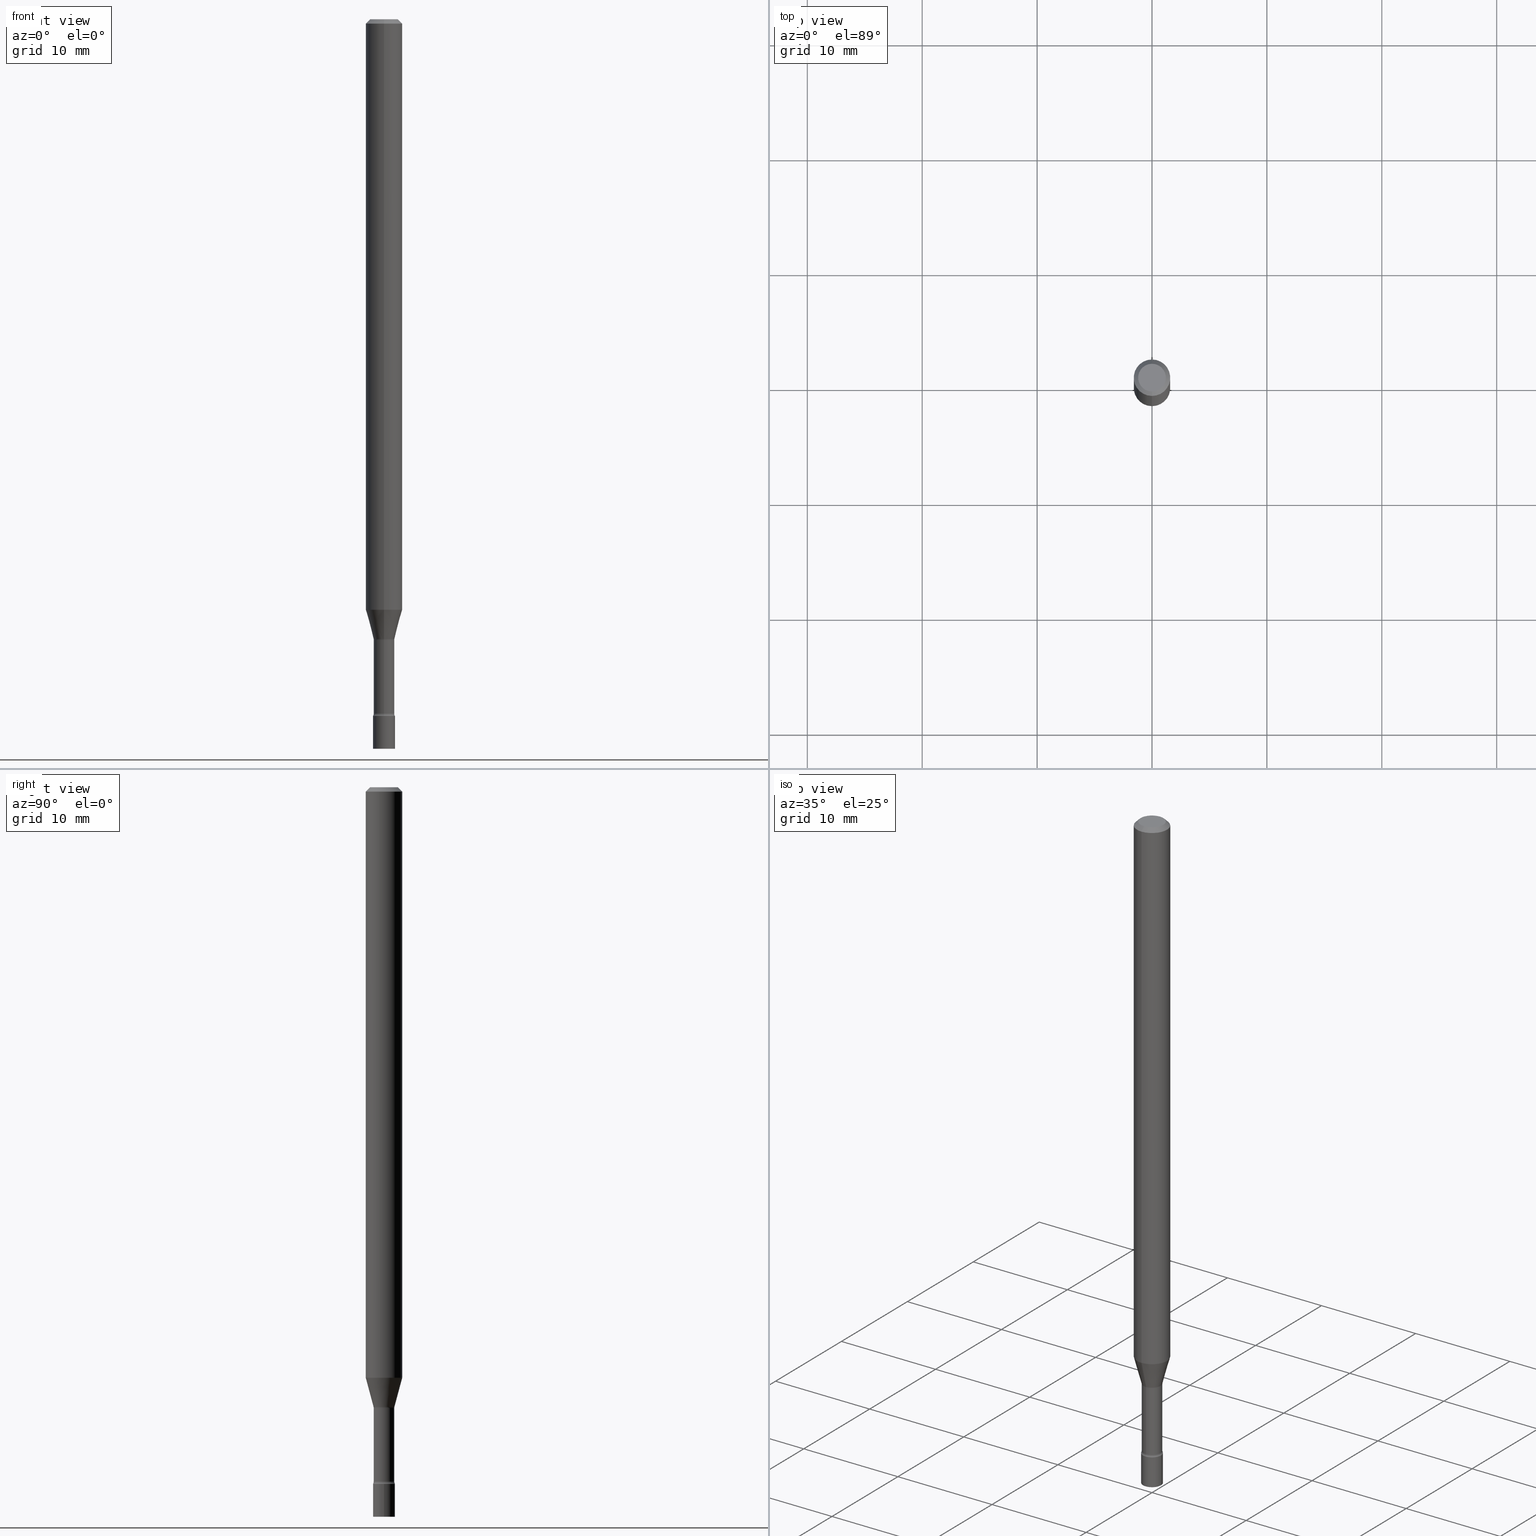
[diagram: canonical four-view strip — front | top / right | iso, engineering-drawing reading convention]
A machine part, canonical four-view strip (front | top / right | iso — engineering-drawing reading convention). The complete STEP part file that produces these views, byte-faithful:
ISO-10303-21;
HEADER;
FILE_DESCRIPTION (( 'STEP AP203' ),
    '1' );
FILE_NAME ('03551.STEP',
    '2024-03-08T21:46:48',
    ( '' ),
    ( '' ),
    'SwSTEP 2.0',
    'SolidWorks 2023',
    '' );
FILE_SCHEMA (( 'CONFIG_CONTROL_DESIGN' ));
ENDSEC;

DATA;
#1 = DIRECTION ( 'NONE',  ( -2.445468806185136597E-29, 3.491481338843145583E-15, 1.000000000000000000 ) ) ;
#2 = EDGE_CURVE ( 'NONE', #39, #55, #101, .T. ) ;
#3 = VERTEX_POINT ( 'NONE', #381 ) ;
#4 = EDGE_LOOP ( 'NONE', ( #458, #24, #254, #62 ) ) ;
#5 = APPROVAL_ROLE ( '' ) ;
#6 = CIRCLE ( 'NONE', #221, 0.03749999999999999861 ) ;
#7 = APPROVAL ( #178, 'UNSPECIFIED' ) ;
#8 = TOROIDAL_SURFACE ( 'NONE', #433, 0.05025000000000002381, 0.01499999999999996649 ) ;
#9 =( LENGTH_UNIT ( ) NAMED_UNIT ( * ) SI_UNIT ( $, .METRE. ) );
#10 = PERSON_AND_ORGANIZATION ( #455, #352 ) ;
#11 = DIRECTION ( 'NONE',  ( 6.982962677686265922E-15, 1.000000000000000000, -3.483106191921935554E-15 ) ) ;
#12 = ORIENTED_EDGE ( 'NONE', *, *, #213, .F. ) ;
#13 = CONICAL_SURFACE ( 'NONE', #33, 0.03576111260566397498, 0.2617993877991499629 ) ;
#14 = TOROIDAL_SURFACE ( 'NONE', #300, 0.05024999999999999606, 0.01500000000000003067 ) ;
#15 = ORIENTED_EDGE ( 'NONE', *, *, #362, .F. ) ;
#16 = CC_DESIGN_PERSON_AND_ORGANIZATION_ASSIGNMENT ( #226, #29, ( #257 ) ) ;
#17 = DIRECTION ( 'NONE',  ( -2.445452959070031637E-29, 3.491504032813937945E-15, 1.000000000000000000 ) ) ;
#18 = CALENDAR_DATE ( 2024, 8, 3 ) ;
#19 = CYLINDRICAL_SURFACE ( 'NONE', #477, 0.03749999999999999861 ) ;
#20 = CARTESIAN_POINT ( 'NONE',  ( -2.461494343883830938E-16, -0.03525000000000835798, -2.379098259685360706 ) ) ;
#21 = ORIENTED_EDGE ( 'NONE', *, *, #275, .F. ) ;
#22 = DIRECTION ( 'NONE',  ( -6.982962677686265922E-15, -1.000000000000000000, 3.483106191921935554E-15 ) ) ;
#23 = DIRECTION ( 'NONE',  ( -2.445468806185136877E-29, 3.491481338843145188E-15, 1.000000000000000000 ) ) ;
#24 = ORIENTED_EDGE ( 'NONE', *, *, #460, .T. ) ;
#25 = ORIENTED_EDGE ( 'NONE', *, *, #397, .F. ) ;
#26 = DIRECTION ( 'NONE',  ( -6.982962677686265922E-15, -1.000000000000000000, 3.483106191921935554E-15 ) ) ;
#27 = VERTEX_POINT ( 'NONE', #499 ) ;
#28 = EDGE_CURVE ( 'NONE', #55, #492, #234, .T. ) ;
#29 = PERSON_AND_ORGANIZATION_ROLE ( 'classification_officer' ) ;
#30 = EDGE_LOOP ( 'NONE', ( #185, #384, #98, #338 ) ) ;
#31 = VERTEX_POINT ( 'NONE', #290 ) ;
#32 = FACE_OUTER_BOUND ( 'NONE', #77, .T. ) ;
#33 = AXIS2_PLACEMENT_3D ( 'NONE', #56, #170, #442 ) ;
#34 = ORIENTED_EDGE ( 'NONE', *, *, #91, .T. ) ;
#35 = CONICAL_SURFACE ( 'NONE', #308, 0.03576111260566397498, 0.2617993877991499629 ) ;
#36 = DIRECTION ( 'NONE',  ( -6.982962677686265922E-15, -1.000000000000000000, 4.370956789862821150E-15 ) ) ;
#37 = DIRECTION ( 'NONE',  ( -2.445452959070031637E-29, 3.491504032813937945E-15, 1.000000000000000000 ) ) ;
#38 = DIRECTION ( 'NONE',  ( -6.982962677686265922E-15, -1.000000000000000000, 3.491504032813938339E-15 ) ) ;
#39 = VERTEX_POINT ( 'NONE', #153 ) ;
#40 = DIRECTION ( 'NONE',  ( -6.982962677686265922E-15, -1.000000000000000000, 3.491504032813937945E-15 ) ) ;
#41 = CARTESIAN_POINT ( 'NONE',  ( 5.818010580909894890E-29, -8.306577176965639319E-15, -2.379098259685360706 ) ) ;
#42 = EDGE_LOOP ( 'NONE', ( #93, #191 ) ) ;
#43 = PLANE ( 'NONE',  #369 ) ;
#44 = AXIS2_PLACEMENT_3D ( 'NONE', #376, #182, #26 ) ;
#45 = CC_DESIGN_APPROVAL ( #283, ( #257 ) ) ;
#46 = DESIGN_CONTEXT ( 'detailed design', #365, 'design' ) ;
#47 = CARTESIAN_POINT ( 'NONE',  ( 4.440892098500625669E-16, 0.06250000000000000000, -2.182190020508711216E-16 ) ) ;
#48 = DIRECTION ( 'NONE',  ( -6.982962677686265922E-15, -1.000000000000000000, 3.491504032813937551E-15 ) ) ;
#49 = COORDINATED_UNIVERSAL_TIME_OFFSET ( 5, 0, .BEHIND. ) ;
#50 = DIRECTION ( 'NONE',  ( 1.000000000000000000, 0.000000000000000000, 0.000000000000000000 ) ) ;
#51 = DIRECTION ( 'NONE',  ( 1.839019923739597949E-15, 0.2588190451025246253, 0.9659258262890670910 ) ) ;
#52 = AXIS2_PLACEMENT_3D ( 'NONE', #151, #336, #230 ) ;
#53 = PERSON_AND_ORGANIZATION ( #455, #352 ) ;
#54 = EDGE_CURVE ( 'NONE', #39, #189, #145, .T. ) ;
#55 = VERTEX_POINT ( 'NONE', #395 ) ;
#56 = CARTESIAN_POINT ( 'NONE',  ( 5.191922840875083909E-29, -7.412786032027297017E-15, -2.123092501787273267 ) ) ;
#57 = AXIS2_PLACEMENT_3D ( 'NONE', #501, #113, #377 ) ;
#58 = ADVANCED_FACE ( 'NONE', ( #322 ), #378, .T. ) ;
#59 = DATE_AND_TIME ( #291, #487 ) ;
#60 = DIRECTION ( 'NONE',  ( -2.445452959070031637E-29, 3.491504032813937945E-15, 1.000000000000000000 ) ) ;
#61 = DIRECTION ( 'NONE',  ( -2.445468806185136877E-29, 3.491481338843145188E-15, 1.000000000000000000 ) ) ;
#62 = ORIENTED_EDGE ( 'NONE', *, *, #199, .F. ) ;
#63 = DIRECTION ( 'NONE',  ( 7.105427357601001859E-15, 1.000000000000000000, 0.000000000000000000 ) ) ;
#64 = DIRECTION ( 'NONE',  ( -2.445452959070031637E-29, 3.491504032813937945E-15, 1.000000000000000000 ) ) ;
#65 = VERTEX_POINT ( 'NONE', #171 ) ;
#66 = FACE_OUTER_BOUND ( 'NONE', #452, .T. ) ;
#67 = TOROIDAL_SURFACE ( 'NONE', #167, 0.05025000000000002381, 0.01499999999999996649 ) ;
#68 = DIRECTION ( 'NONE',  ( -1.000000000000000000, 6.982962677686265922E-15, -4.883557194083112901E-29 ) ) ;
#69 = ADVANCED_FACE ( 'NONE', ( #122 ), #449, .T. ) ;
#70 = CARTESIAN_POINT ( 'NONE',  ( 3.570477247195085925E-16, 0.05024999999999171796, -2.379098259685360706 ) ) ;
#71 = ORIENTED_EDGE ( 'NONE', *, *, #383, .T. ) ;
#72 = DIRECTION ( 'NONE',  ( -2.445452959070031637E-29, 3.491504032813937945E-15, 1.000000000000000000 ) ) ;
#73 = CARTESIAN_POINT ( 'NONE',  ( 5.201450494285011202E-29, -7.426292778619762925E-15, -2.126974787463811190 ) ) ;
#74 = ADVANCED_FACE ( 'NONE', ( #220 ), #133, .T. ) ;
#75 = CIRCLE ( 'NONE', #44, 0.06250000000000000000 ) ;
#76 = CARTESIAN_POINT ( 'NONE',  ( 5.837296213300165322E-29, -8.334220126326869509E-15, -2.387000000000000011 ) ) ;
#77 = EDGE_LOOP ( 'NONE', ( #15, #162, #424, #505 ) ) ;
#78 = CARTESIAN_POINT ( 'NONE',  ( -4.364351673553916201E-16, -0.06250000000000000000, 2.182190020508711216E-16 ) ) ;
#79 = CC_DESIGN_PERSON_AND_ORGANIZATION_ASSIGNMENT ( #491, #408, ( #498 ) ) ;
#80 = LINE ( 'NONE', #78, #307 ) ;
#81 = FACE_OUTER_BOUND ( 'NONE', #261, .T. ) ;
#82 = CIRCLE ( 'NONE', #198, 0.06250000000000000000 ) ;
#83 = ORIENTED_EDGE ( 'NONE', *, *, #323, .T. ) ;
#84 = DIRECTION ( 'NONE',  ( -6.982962677686265922E-15, -1.000000000000000000, 0.000000000000000000 ) ) ;
#85 = AXIS2_PLACEMENT_3D ( 'NONE', #509, #60, #303 ) ;
#86 = ADVANCED_FACE ( 'NONE', ( #372 ), #250, .T. ) ;
#87 = APPLICATION_PROTOCOL_DEFINITION ( 'international standard', 'config_control_design', 1994, #279 ) ;
#88 = PRODUCT_DEFINITION_SHAPE ( 'NONE', 'NONE',  #498 ) ;
#89 = APPROVAL_ROLE ( '' ) ;
#90 = AXIS2_PLACEMENT_3D ( 'NONE', #515, #355, #478 ) ;
#91 = EDGE_CURVE ( 'NONE', #3, #65, #329, .T. ) ;
#92 = AXIS2_PLACEMENT_3D ( 'NONE', #217, #190, #110 ) ;
#93 = ORIENTED_EDGE ( 'NONE', *, *, #494, .T. ) ;
#94 = FACE_OUTER_BOUND ( 'NONE', #335, .T. ) ;
#95 = SECURITY_CLASSIFICATION_LEVEL ( 'unclassified' ) ;
#96 = ORIENTED_EDGE ( 'NONE', *, *, #285, .T. ) ;
#97 = PERSON_AND_ORGANIZATION_ROLE ( 'design_owner' ) ;
#98 = ORIENTED_EDGE ( 'NONE', *, *, #28, .T. ) ;
#99 = DATE_AND_TIME ( #284, #277 ) ;
#100 =( GEOMETRIC_REPRESENTATION_CONTEXT ( 3 ) GLOBAL_UNCERTAINTY_ASSIGNED_CONTEXT ( ( #349 ) ) GLOBAL_UNIT_ASSIGNED_CONTEXT ( ( #321, #320, #214 ) ) REPRESENTATION_CONTEXT ( 'NONE', 'WORKASPACE' ) );
#101 = CIRCLE ( 'NONE', #390, 0.01500000000000002720 ) ;
#102 = ORIENTED_EDGE ( 'NONE', *, *, #241, .T. ) ;
#103 = CARTESIAN_POINT ( 'NONE',  ( -3.508938745536828236E-16, -0.05025000000000742068, -2.126974787463810745 ) ) ;
#104 = CARTESIAN_POINT ( 'NONE',  ( 0.000000000000000000, 0.000000000000000000, 0.000000000000000000 ) ) ;
#105 = FACE_OUTER_BOUND ( 'NONE', #4, .T. ) ;
#106 = LINE ( 'NONE', #344, #158 ) ;
#107 = ORIENTED_EDGE ( 'NONE', *, *, #305, .T. ) ;
#108 = CIRCLE ( 'NONE', #421, 0.01500000000000002720 ) ;
#109 = VERTEX_POINT ( 'NONE', #131 ) ;
#110 = DIRECTION ( 'NONE',  ( -6.982962677686266711E-15, -1.000000000000000000, 0.000000000000000000 ) ) ;
#111 = ORIENTED_EDGE ( 'NONE', *, *, #152, .T. ) ;
#112 = ORIENTED_EDGE ( 'NONE', *, *, #463, .F. ) ;
#113 = DIRECTION ( 'NONE',  ( -2.445452959070031637E-29, 3.491504032813937945E-15, 1.000000000000000000 ) ) ;
#114 = ORIENTED_EDGE ( 'NONE', *, *, #246, .T. ) ;
#115 = ADVANCED_FACE ( 'NONE', ( #94 ), #8, .F. ) ;
#116 = DIRECTION ( 'NONE',  ( -6.982962677686266711E-15, -1.000000000000000000, 0.000000000000000000 ) ) ;
#117 = ORIENTED_EDGE ( 'NONE', *, *, #405, .F. ) ;
#118 = DIRECTION ( 'NONE',  ( -2.445452959070031637E-29, 3.491504032813938339E-15, 1.000000000000000000 ) ) ;
#119 = AXIS2_PLACEMENT_3D ( 'NONE', #104, #64, #373 ) ;
#120 = CARTESIAN_POINT ( 'NONE',  ( 3.316907271900976096E-16, 0.04749999999999999362, -1.803028580407902021E-16 ) ) ;
#121 = CARTESIAN_POINT ( 'NONE',  ( 5.191922840875083909E-29, -7.412786032027297017E-15, -2.123092501787273267 ) ) ;
#122 = FACE_OUTER_BOUND ( 'NONE', #137, .T. ) ;
#123 = DIRECTION ( 'NONE',  ( -1.000000000000000000, 6.982962677686265922E-15, -4.883557194083112901E-29 ) ) ;
#124 = CARTESIAN_POINT ( 'NONE',  ( 2.584599201327948014E-16, 0.03524999999999174627, -2.379098259685360706 ) ) ;
#125 = CIRCLE ( 'NONE', #474, 0.03576111260566397498 ) ;
#126 = CARTESIAN_POINT ( 'NONE',  ( 4.947888922700362317E-29, -7.064365750095378043E-15, -2.023301615493748429 ) ) ;
#127 = VERTEX_POINT ( 'NONE', #183 ) ;
#128 = APPROVAL_DATE_TIME ( #207, #485 ) ;
#129 = EDGE_CURVE ( 'NONE', #500, #343, #223, .T. ) ;
#130 = LENGTH_MEASURE_WITH_UNIT ( LENGTH_MEASURE( 0.02539999999999999897 ), #9 );
#131 = CARTESIAN_POINT ( 'NONE',  ( 3.840629472727447874E-16, 0.04749999999999999362, -1.947592745229184365E-16 ) ) ;
#132 = AXIS2_PLACEMENT_3D ( 'NONE', #512, #357, #40 ) ;
#133 = PLANE ( 'NONE',  #194 ) ;
#134 = AXIS2_PLACEMENT_3D ( 'NONE', #382, #418, #22 ) ;
#135 = CIRCLE ( 'NONE', #192, 0.04749999999999999362 ) ;
#136 = ORIENTED_EDGE ( 'NONE', *, *, #275, .T. ) ;
#137 = EDGE_LOOP ( 'NONE', ( #96, #514, #350, #399 ) ) ;
#138 = FACE_OUTER_BOUND ( 'NONE', #429, .T. ) ;
#139 = AXIS2_PLACEMENT_3D ( 'NONE', #503, #193, #116 ) ;
#140 = ORIENTED_EDGE ( 'NONE', *, *, #410, .F. ) ;
#141 = CARTESIAN_POINT ( 'NONE',  ( 4.440892098501123144E-16, 0.06249999999999995143, -0.01500000000000024751 ) ) ;
#142 = ADVANCED_FACE ( 'NONE', ( #465 ), #441, .F. ) ;
#143 = FACE_OUTER_BOUND ( 'NONE', #324, .T. ) ;
#144 = ORIENTED_EDGE ( 'NONE', *, *, #309, .T. ) ;
#145 = LINE ( 'NONE', #506, #406 ) ;
#146 = DIRECTION ( 'NONE',  ( -2.445452959070031637E-29, 3.491504032813937945E-15, 1.000000000000000000 ) ) ;
#147 = AXIS2_PLACEMENT_3D ( 'NONE', #231, #473, #235 ) ;
#148 = CLOSED_SHELL ( 'NONE', ( #142, #69, #161, #58, #380, #489, #280, #268, #219, #356, #431, #115, #86, #346 ) ) ;
#149 = ORIENTED_EDGE ( 'NONE', *, *, #405, .T. ) ;
#150 = ORIENTED_EDGE ( 'NONE', *, *, #91, .F. ) ;
#151 = CARTESIAN_POINT ( 'NONE',  ( 5.201416787870728484E-29, -7.426341048123464484E-15, -2.126974787463811190 ) ) ;
#152 = EDGE_CURVE ( 'NONE', #211, #475, #447, .T. ) ;
#153 = CARTESIAN_POINT ( 'NONE',  ( 3.490935988483495191E-16, 0.03576111260565655731, -2.123092501787273267 ) ) ;
#154 = CARTESIAN_POINT ( 'NONE',  ( -2.497185146378354516E-16, -0.03576111260567138572, -2.123092501787273267 ) ) ;
#155 = DIRECTION ( 'NONE',  ( -2.445452959070031637E-29, 3.491504032813937945E-15, 1.000000000000000000 ) ) ;
#156 = DIRECTION ( 'NONE',  ( -2.445452959070030796E-29, 3.491504032813938339E-15, 1.000000000000000000 ) ) ;
#157 = AXIS2_PLACEMENT_3D ( 'NONE', #327, #242, #50 ) ;
#158 = VECTOR ( 'NONE', #258, 39.37007874015748143 ) ;
#159 = VECTOR ( 'NONE', #298, 39.37007874015748143 ) ;
#160 = LINE ( 'NONE', #511, #481 ) ;
#161 = ADVANCED_FACE ( 'NONE', ( #81 ), #67, .F. ) ;
#162 = ORIENTED_EDGE ( 'NONE', *, *, #199, .T. ) ;
#163 = DIRECTION ( 'NONE',  ( -6.982962677686265133E-15, -1.000000000000000000, 0.000000000000000000 ) ) ;
#164 = CYLINDRICAL_SURFACE ( 'NONE', #147, 0.03749999999999999861 ) ;
#165 = ORIENTED_EDGE ( 'NONE', *, *, #237, .T. ) ;
#166 = CC_DESIGN_APPROVAL ( #7, ( #498 ) ) ;
#167 = AXIS2_PLACEMENT_3D ( 'NONE', #41, #270, #402 ) ;
#168 = EDGE_CURVE ( 'NONE', #343, #65, #353, .T. ) ;
#169 = PERSON_AND_ORGANIZATION ( #455, #352 ) ;
#170 = DIRECTION ( 'NONE',  ( -2.445452959070031637E-29, 3.491504032813937945E-15, 1.000000000000000000 ) ) ;
#171 = CARTESIAN_POINT ( 'NONE',  ( 0.03749999999999999861, -8.596027056231822783E-15, -2.387000000000000011 ) ) ;
#172 = ORIENTED_EDGE ( 'NONE', *, *, #299, .F. ) ;
#173 = CARTESIAN_POINT ( 'NONE',  ( -0.03749999999999999861, -8.264981125553189739E-15, -2.500000000000000000 ) ) ;
#174 = CIRCLE ( 'NONE', #328, 0.03749999999999999861 ) ;
#175 = DIRECTION ( 'NONE',  ( 2.438088387897960049E-29, -3.491481338843145188E-15, -1.000000000000000000 ) ) ;
#176 = CONICAL_SURFACE ( 'NONE', #446, 0.06250000000000000000, 0.7853981633974483900 ) ;
#177 = VERTEX_POINT ( 'NONE', #186 ) ;
#178 = APPROVAL_STATUS ( 'not_yet_approved' ) ;
#179 = COORDINATED_UNIVERSAL_TIME_OFFSET ( 5, 0, .BEHIND. ) ;
#180 = DIRECTION ( 'NONE',  ( -2.445452959070031637E-29, 3.491504032813937945E-15, 1.000000000000000000 ) ) ;
#181 = LOCAL_TIME ( 16, 46, 48.00000000000000000, #484 ) ;
#182 = DIRECTION ( 'NONE',  ( -2.445452959070031637E-29, 3.491504032813937945E-15, 1.000000000000000000 ) ) ;
#183 = CARTESIAN_POINT ( 'NONE',  ( -4.364351673553423163E-16, -0.06250000000000709155, -2.023301615493747985 ) ) ;
#184 = AXIS2_PLACEMENT_3D ( 'NONE', #208, #361, #11 ) ;
#185 = ORIENTED_EDGE ( 'NONE', *, *, #460, .F. ) ;
#186 = CARTESIAN_POINT ( 'NONE',  ( -3.773273898774340269E-16, -0.04749999999999999362, 1.369336085944056465E-16 ) ) ;
#187 = ORIENTED_EDGE ( 'NONE', *, *, #213, .T. ) ;
#188 = DIRECTION ( 'NONE',  ( -6.982962677686265922E-15, -1.000000000000000000, 3.491504032813937945E-15 ) ) ;
#189 = VERTEX_POINT ( 'NONE', #218 ) ;
#190 = DIRECTION ( 'NONE',  ( -2.445452959070031637E-29, 3.491504032813937945E-15, 1.000000000000000000 ) ) ;
#191 = ORIENTED_EDGE ( 'NONE', *, *, #168, .T. ) ;
#192 = AXIS2_PLACEMENT_3D ( 'NONE', #267, #72, #480 ) ;
#193 = DIRECTION ( 'NONE',  ( -2.445452959070031637E-29, 3.491504032813937945E-15, 1.000000000000000000 ) ) ;
#194 = AXIS2_PLACEMENT_3D ( 'NONE', #367, #175, #286 ) ;
#195 = CYLINDRICAL_SURFACE ( 'NONE', #132, 0.06250000000000000000 ) ;
#196 = DIRECTION ( 'NONE',  ( 2.445452959070030796E-29, -3.491504032813938339E-15, -1.000000000000000000 ) ) ;
#197 = DIRECTION ( 'NONE',  ( -2.445452959070031637E-29, 3.491504032813937945E-15, 1.000000000000000000 ) ) ;
#198 = AXIS2_PLACEMENT_3D ( 'NONE', #126, #430, #36 ) ;
#199 = EDGE_CURVE ( 'NONE', #189, #127, #495, .T. ) ;
#200 = CIRCLE ( 'NONE', #488, 0.01499999999999996822 ) ;
#201 = EDGE_LOOP ( 'NONE', ( #251, #466, #12, #140 ) ) ;
#202 = DIRECTION ( 'NONE',  ( -6.982962677686265922E-15, -1.000000000000000000, 3.491504032813938339E-15 ) ) ;
#203 = ORIENTED_EDGE ( 'NONE', *, *, #28, .F. ) ;
#204 = ORIENTED_EDGE ( 'NONE', *, *, #397, .T. ) ;
#205 = DIRECTION ( 'NONE',  ( -6.982962677686265922E-15, -1.000000000000000000, 3.491504032813937551E-15 ) ) ;
#206 = DATE_TIME_ROLE ( 'creation_date' ) ;
#207 = DATE_AND_TIME ( #210, #181 ) ;
#208 = CARTESIAN_POINT ( 'NONE',  ( 3.668179438605054672E-31, -5.237256049220917247E-17, -0.01500000000000003067 ) ) ;
#209 = EDGE_CURVE ( 'NONE', #461, #127, #374, .T. ) ;
#210 = CALENDAR_DATE ( 2024, 8, 3 ) ;
#211 = VERTEX_POINT ( 'NONE', #20 ) ;
#212 = EDGE_LOOP ( 'NONE', ( #102, #281 ) ) ;
#213 = EDGE_CURVE ( 'NONE', #31, #296, #483, .T. ) ;
#214 =( NAMED_UNIT ( * ) SI_UNIT ( $, .STERADIAN. ) SOLID_ANGLE_UNIT ( ) );
#215 = VECTOR ( 'NONE', #304, 39.37007874015748143 ) ;
#216 = VECTOR ( 'NONE', #23, 39.37007874015748143 ) ;
#217 = CARTESIAN_POINT ( 'NONE',  ( 5.817972879065927793E-29, -8.306631168152057468E-15, -2.379098259685360706 ) ) ;
#218 = CARTESIAN_POINT ( 'NONE',  ( 4.440892098501118214E-16, 0.06249999999999290151, -2.023301615493748873 ) ) ;
#219 = ADVANCED_FACE ( 'NONE', ( #66 ), #176, .T. ) ;
#220 = FACE_OUTER_BOUND ( 'NONE', #354, .T. ) ;
#221 = AXIS2_PLACEMENT_3D ( 'NONE', #360, #486, #273 ) ;
#222 = DIRECTION ( 'NONE',  ( 2.445452959070031637E-29, -3.491504032813937945E-15, -1.000000000000000000 ) ) ;
#223 = LINE ( 'NONE', #379, #216 ) ;
#224 = VECTOR ( 'NONE', #61, 39.37007874015748143 ) ;
#225 = PRODUCT_DEFINITION_FORMATION_WITH_SPECIFIED_SOURCE ( 'ANY', '', #314, .NOT_KNOWN. ) ;
#226 = PERSON_AND_ORGANIZATION ( #455, #352 ) ;
#227 = DIRECTION ( 'NONE',  ( -2.445452959070031637E-29, 3.491504032813937945E-15, 1.000000000000000000 ) ) ;
#228 = ORIENTED_EDGE ( 'NONE', *, *, #129, .F. ) ;
#229 = ORIENTED_EDGE ( 'NONE', *, *, #152, .F. ) ;
#230 = DIRECTION ( 'NONE',  ( -6.982962677686266711E-15, -1.000000000000000000, 0.000000000000000000 ) ) ;
#231 = CARTESIAN_POINT ( 'NONE',  ( 0.000000000000000000, 0.000000000000000000, 0.000000000000000000 ) ) ;
#232 = ORIENTED_EDGE ( 'NONE', *, *, #168, .F. ) ;
#233 = CIRCLE ( 'NONE', #368, 0.03749999999999999861 ) ;
#234 = CIRCLE ( 'NONE', #139, 0.03524999999999998967 ) ;
#235 = DIRECTION ( 'NONE',  ( 1.000000000000000000, -6.982962677686266711E-15, 4.876176775795935793E-29 ) ) ;
#236 = PLANE ( 'NONE',  #90 ) ;
#237 = EDGE_CURVE ( 'NONE', #296, #31, #75, .T. ) ;
#238 = DIRECTION ( 'NONE',  ( -6.982962677686265922E-15, -1.000000000000000000, 0.000000000000000000 ) ) ;
#239 = LOCAL_TIME ( 16, 46, 48.00000000000000000, #49 ) ;
#240 = FACE_OUTER_BOUND ( 'NONE', #212, .T. ) ;
#241 = EDGE_CURVE ( 'NONE', #109, #177, #244, .T. ) ;
#242 = DIRECTION ( 'NONE',  ( 0.000000000000000000, 0.000000000000000000, 1.000000000000000000 ) ) ;
#243 = MECHANICAL_CONTEXT ( 'NONE', #279, 'mechanical' ) ;
#244 = CIRCLE ( 'NONE', #57, 0.04749999999999999362 ) ;
#245 = CARTESIAN_POINT ( 'NONE',  ( 3.570477247195022323E-16, 0.05024999999999257144, -2.126974787463811634 ) ) ;
#246 = EDGE_CURVE ( 'NONE', #492, #55, #359, .T. ) ;
#247 = ORIENTED_EDGE ( 'NONE', *, *, #209, .F. ) ;
#248 = AXIS2_PLACEMENT_3D ( 'NONE', #388, #351, #345 ) ;
#249 = ADVANCED_FACE ( 'NONE', ( #143 ), #19, .T. ) ;
#250 = CYLINDRICAL_SURFACE ( 'NONE', #259, 0.03525000000000001743 ) ;
#251 = ORIENTED_EDGE ( 'NONE', *, *, #482, .T. ) ;
#252 = DIRECTION ( 'NONE',  ( -2.445468806185136597E-29, 3.491481338843145583E-15, 1.000000000000000000 ) ) ;
#253 = CC_DESIGN_PERSON_AND_ORGANIZATION_ASSIGNMENT ( #169, #363, ( #225 ) ) ;
#254 = ORIENTED_EDGE ( 'NONE', *, *, #209, .T. ) ;
#255 = CARTESIAN_POINT ( 'NONE',  ( 2.504663143554354394E-16, 0.03525000000000001743, -1.230755171566913960E-16 ) ) ;
#256 = ORIENTED_EDGE ( 'NONE', *, *, #443, .T. ) ;
#257 = SECURITY_CLASSIFICATION ( '', '', #95 ) ;
#258 = DIRECTION ( 'NONE',  ( -2.445452959070031637E-29, 3.491504032813938339E-15, 1.000000000000000000 ) ) ;
#259 = AXIS2_PLACEMENT_3D ( 'NONE', #370, #17, #412 ) ;
#260 = AXIS2_PLACEMENT_3D ( 'NONE', #432, #400, #84 ) ;
#261 = EDGE_LOOP ( 'NONE', ( #315, #83, #507, #229 ) ) ;
#262 = CARTESIAN_POINT ( 'NONE',  ( 4.364351673553919652E-16, 0.06249999999999995143, -0.01500000000000024751 ) ) ;
#263 = ORIENTED_EDGE ( 'NONE', *, *, #386, .T. ) ;
#264 = CARTESIAN_POINT ( 'NONE',  ( 5.191922840875083909E-29, -7.412786032027297017E-15, -2.123092501787273267 ) ) ;
#265 = LINE ( 'NONE', #47, #215 ) ;
#266 = DIRECTION ( 'NONE',  ( 1.000000000000000000, -6.982962677686268288E-15, 0.000000000000000000 ) ) ;
#267 = CARTESIAN_POINT ( 'NONE',  ( 7.070497292753833114E-46, -1.009492728947769211E-31, -2.891283296425638268E-17 ) ) ;
#268 = ADVANCED_FACE ( 'NONE', ( #32 ), #464, .T. ) ;
#269 = DIRECTION ( 'NONE',  ( -6.982962677686266711E-15, -1.000000000000000000, 0.000000000000000000 ) ) ;
#270 = DIRECTION ( 'NONE',  ( -2.445452959070031637E-29, 3.491504032813937945E-15, 1.000000000000000000 ) ) ;
#271 = DIRECTION ( 'NONE',  ( -6.982962677686265133E-15, -1.000000000000000000, 0.000000000000000000 ) ) ;
#272 = AXIS2_PLACEMENT_3D ( 'NONE', #339, #146, #462 ) ;
#273 = DIRECTION ( 'NONE',  ( 1.000000000000000000, -6.982962677686268288E-15, 0.000000000000000000 ) ) ;
#274 = DIRECTION ( 'NONE',  ( 1.000000000000000000, -6.982962677686268288E-15, 0.000000000000000000 ) ) ;
#275 = EDGE_CURVE ( 'NONE', #109, #296, #504, .T. ) ;
#276 = COORDINATED_UNIVERSAL_TIME_OFFSET ( 5, 0, .BEHIND. ) ;
#277 = LOCAL_TIME ( 16, 46, 48.00000000000000000, #179 ) ;
#278 = PERSON_AND_ORGANIZATION_ROLE ( 'design_supplier' ) ;
#279 = APPLICATION_CONTEXT ( 'configuration controlled 3d designs of mechanical parts and assemblies' ) ;
#280 = ADVANCED_FACE ( 'NONE', ( #105 ), #35, .T. ) ;
#281 = ORIENTED_EDGE ( 'NONE', *, *, #463, .T. ) ;
#282 = PERSON_AND_ORGANIZATION ( #455, #352 ) ;
#283 = APPROVAL ( #413, 'UNSPECIFIED' ) ;
#284 = CALENDAR_DATE ( 2024, 8, 3 ) ;
#285 = EDGE_CURVE ( 'NONE', #211, #435, #469, .T. ) ;
#286 = DIRECTION ( 'NONE',  ( -1.000000000000000000, 6.982962677686265922E-15, -4.876176775795935793E-29 ) ) ;
#287 = ORIENTED_EDGE ( 'NONE', *, *, #419, .F. ) ;
#288 = ORIENTED_EDGE ( 'NONE', *, *, #2, .F. ) ;
#289 = LINE ( 'NONE', #255, #159 ) ;
#290 = CARTESIAN_POINT ( 'NONE',  ( -4.364351673553912750E-16, -0.06250000000000005551, -0.01499999999999981209 ) ) ;
#291 = CALENDAR_DATE ( 2024, 8, 3 ) ;
#292 = CARTESIAN_POINT ( 'NONE',  ( 3.668179438605054672E-31, -5.237256049220917247E-17, -0.01500000000000003067 ) ) ;
#293 = EDGE_LOOP ( 'NONE', ( #117, #287 ) ) ;
#294 = DIRECTION ( 'NONE',  ( 1.000000000000000000, -7.105427357601001070E-15, 4.926315786463069154E-29 ) ) ;
#295 = APPROVAL_ROLE ( '' ) ;
#296 = VERTEX_POINT ( 'NONE', #141 ) ;
#297 = CC_DESIGN_APPROVAL ( #485, ( #225 ) ) ;
#298 = DIRECTION ( 'NONE',  ( -2.445452959070031637E-29, 3.491504032813938339E-15, 1.000000000000000000 ) ) ;
#299 = EDGE_CURVE ( 'NONE', #435, #55, #289, .T. ) ;
#300 = AXIS2_PLACEMENT_3D ( 'NONE', #437, #519, #205 ) ;
#301 = CARTESIAN_POINT ( 'NONE',  ( 5.818010580909894890E-29, -8.306577176965639319E-15, -2.379098259685360706 ) ) ;
#302 = EDGE_LOOP ( 'NONE', ( #172, #415, #107, #203 ) ) ;
#303 = DIRECTION ( 'NONE',  ( -6.982962677686266711E-15, -1.000000000000000000, 0.000000000000000000 ) ) ;
#304 = DIRECTION ( 'NONE',  ( -2.445452959070031637E-29, 3.491504032813938339E-15, 1.000000000000000000 ) ) ;
#305 = EDGE_CURVE ( 'NONE', #211, #492, #106, .T. ) ;
#306 = FACE_OUTER_BOUND ( 'NONE', #42, .T. ) ;
#307 = VECTOR ( 'NONE', #118, 39.37007874015748143 ) ;
#308 = AXIS2_PLACEMENT_3D ( 'NONE', #264, #180, #470 ) ;
#309 = EDGE_CURVE ( 'NONE', #461, #492, #108, .T. ) ;
#310 = CARTESIAN_POINT ( 'NONE',  ( 6.113672015462842613E-29, -8.728703347107864943E-15, -2.500000000000000000 ) ) ;
#311 = CARTESIAN_POINT ( 'NONE',  ( -3.508938745536768578E-16, -0.05025000000000832967, -2.379098259685360262 ) ) ;
#312 = ORIENTED_EDGE ( 'NONE', *, *, #54, .T. ) ;
#313 = CARTESIAN_POINT ( 'NONE',  ( 5.191922840875083909E-29, -7.412786032027297017E-15, -2.123092501787273267 ) ) ;
#314 = PRODUCT ( '03551', '03551', '', ( #243 ) ) ;
#315 = ORIENTED_EDGE ( 'NONE', *, *, #331, .F. ) ;
#316 = DIRECTION ( 'NONE',  ( -4.851104656540964275E-15, -0.7071067811865500152, -0.7071067811865450192 ) ) ;
#317 = CC_DESIGN_PERSON_AND_ORGANIZATION_ASSIGNMENT ( #10, #278, ( #225 ) ) ;
#318 = AXIS2_PLACEMENT_3D ( 'NONE', #393, #156, #202 ) ;
#319 = VECTOR ( 'NONE', #427, 39.37007874015748143 ) ;
#320 =( NAMED_UNIT ( * ) PLANE_ANGLE_UNIT ( ) SI_UNIT ( $, .RADIAN. ) );
#321 =( CONVERSION_BASED_UNIT ( 'INCH', #130 ) LENGTH_UNIT ( ) NAMED_UNIT ( #416 ) );
#322 = FACE_OUTER_BOUND ( 'NONE', #496, .T. ) ;
#323 = EDGE_CURVE ( 'NONE', #435, #27, #200, .T. ) ;
#324 = EDGE_LOOP ( 'NONE', ( #263, #510, #426, #150 ) ) ;
#325 = PRODUCT_RELATED_PRODUCT_CATEGORY ( 'detail', '', ( #314 ) ) ;
#326 = VECTOR ( 'NONE', #414, 39.37007874015748143 ) ;
#327 = CARTESIAN_POINT ( 'NONE',  ( 0.000000000000000000, 0.000000000000000000, 0.000000000000000000 ) ) ;
#328 = AXIS2_PLACEMENT_3D ( 'NONE', #76, #37, #238 ) ;
#329 = LINE ( 'NONE', #490, #224 ) ;
#330 = DATE_AND_TIME ( #18, #239 ) ;
#331 = EDGE_CURVE ( 'NONE', #435, #211, #396, .T. ) ;
#332 = SHAPE_DEFINITION_REPRESENTATION ( #88, #347 ) ;
#333 = DIRECTION ( 'NONE',  ( 1.000000000000000000, -7.105427357601001070E-15, 4.926315786463069154E-29 ) ) ;
#334 = APPROVAL_DATE_TIME ( #99, #283 ) ;
#335 = EDGE_LOOP ( 'NONE', ( #428, #392, #111, #149 ) ) ;
#336 = DIRECTION ( 'NONE',  ( -2.445452959070031637E-29, 3.491504032813937945E-15, 1.000000000000000000 ) ) ;
#337 = AXIS2_PLACEMENT_3D ( 'NONE', #497, #227, #188 ) ;
#338 = ORIENTED_EDGE ( 'NONE', *, *, #309, .F. ) ;
#339 = CARTESIAN_POINT ( 'NONE',  ( 4.947888922700362317E-29, -7.064365750095378043E-15, -2.023301615493748429 ) ) ;
#340 = DIRECTION ( 'NONE',  ( -2.445468806185136597E-29, 3.491481338843145583E-15, 1.000000000000000000 ) ) ;
#341 = ORIENTED_EDGE ( 'NONE', *, *, #443, .F. ) ;
#342 = DIRECTION ( 'NONE',  ( -6.982962677686267499E-15, -1.000000000000000000, 0.000000000000000000 ) ) ;
#343 = VERTEX_POINT ( 'NONE', #493 ) ;
#344 = CARTESIAN_POINT ( 'NONE',  ( -2.461494343884410258E-16, -0.03525000000000001743, 1.230755171566913960E-16 ) ) ;
#345 = DIRECTION ( 'NONE',  ( 1.000000000000000000, -6.982962677686268288E-15, 0.000000000000000000 ) ) ;
#346 = ADVANCED_FACE ( 'NONE', ( #138 ), #14, .F. ) ;
#347 = ADVANCED_BREP_SHAPE_REPRESENTATION ( '03551', ( #518, #520, #157 ), #100 ) ;
#348 = PLANE ( 'NONE',  #318 ) ;
#349 = UNCERTAINTY_MEASURE_WITH_UNIT (LENGTH_MEASURE( 1.000000000000000082E-05 ), #321, 'distance_accuracy_value', 'NONE');
#350 = ORIENTED_EDGE ( 'NONE', *, *, #246, .F. ) ;
#351 = DIRECTION ( 'NONE',  ( -2.445468806185136597E-29, 3.491481338843145583E-15, 1.000000000000000000 ) ) ;
#352 = ORGANIZATION ( 'UNSPECIFIED', 'UNSPECIFIED', '' ) ;
#353 = CIRCLE ( 'NONE', #516, 0.03749999999999999861 ) ;
#354 = EDGE_LOOP ( 'NONE', ( #375, #341 ) ) ;
#355 = DIRECTION ( 'NONE',  ( -2.438088387897960049E-29, 3.491481338843145188E-15, 1.000000000000000000 ) ) ;
#356 = ADVANCED_FACE ( 'NONE', ( #240 ), #43, .F. ) ;
#357 = DIRECTION ( 'NONE',  ( -2.445452959070031637E-29, 3.491504032813937945E-15, 1.000000000000000000 ) ) ;
#358 = APPROVAL_STATUS ( 'not_yet_approved' ) ;
#359 = CIRCLE ( 'NONE', #52, 0.03524999999999998967 ) ;
#360 = CARTESIAN_POINT ( 'NONE',  ( 5.837334040363921048E-29, -8.334165955818587781E-15, -2.387000000000000011 ) ) ;
#361 = DIRECTION ( 'NONE',  ( 2.445452959070031637E-29, -3.491504032813937945E-15, -1.000000000000000000 ) ) ;
#362 = EDGE_CURVE ( 'NONE', #189, #296, #265, .T. ) ;
#363 = PERSON_AND_ORGANIZATION_ROLE ( 'creator' ) ;
#364 = ORIENTED_EDGE ( 'NONE', *, *, #482, .F. ) ;
#365 = APPLICATION_CONTEXT ( 'configuration controlled 3d designs of mechanical parts and assemblies' ) ;
#366 = FACE_OUTER_BOUND ( 'NONE', #417, .T. ) ;
#367 = CARTESIAN_POINT ( 'NONE',  ( 2.618611004132960891E-16, 0.03749999999999126948, -2.500000000000000000 ) ) ;
#368 = AXIS2_PLACEMENT_3D ( 'NONE', #310, #1, #266 ) ;
#369 = AXIS2_PLACEMENT_3D ( 'NONE', #120, #196, #391 ) ;
#370 = CARTESIAN_POINT ( 'NONE',  ( 0.000000000000000000, 0.000000000000000000, 0.000000000000000000 ) ) ;
#371 = APPLICATION_PROTOCOL_DEFINITION ( 'international standard', 'config_control_design', 1994, #365 ) ;
#372 = FACE_OUTER_BOUND ( 'NONE', #302, .T. ) ;
#373 = DIRECTION ( 'NONE',  ( -6.982962677686266711E-15, -1.000000000000000000, 3.491504032813938734E-15 ) ) ;
#374 = LINE ( 'NONE', #422, #319 ) ;
#375 = ORIENTED_EDGE ( 'NONE', *, *, #386, .F. ) ;
#376 = CARTESIAN_POINT ( 'NONE',  ( 3.668179438605054672E-31, -5.237256049220917247E-17, -0.01500000000000003067 ) ) ;
#377 = DIRECTION ( 'NONE',  ( -6.982962677686266711E-15, -1.000000000000000000, 3.491504032813938339E-15 ) ) ;
#378 = CONICAL_SURFACE ( 'NONE', #184, 0.06250000000000000000, 0.7853981633974483900 ) ;
#379 = CARTESIAN_POINT ( 'NONE',  ( -0.03749999999999999861, 2.664535259100375598E-16, -1.844600658845589458E-30 ) ) ;
#380 = ADVANCED_FACE ( 'NONE', ( #436 ), #195, .T. ) ;
#381 = CARTESIAN_POINT ( 'NONE',  ( 0.03749999999999999861, -8.990564447521099944E-15, -2.500000000000000000 ) ) ;
#382 = CARTESIAN_POINT ( 'NONE',  ( 3.668179438605054672E-31, -5.237256049220917247E-17, -0.01500000000000003067 ) ) ;
#383 = EDGE_CURVE ( 'NONE', #461, #39, #125, .T. ) ;
#384 = ORIENTED_EDGE ( 'NONE', *, *, #2, .T. ) ;
#385 = DIRECTION ( 'NONE',  ( 1.000000000000000000, -6.982962677686266711E-15, 4.876176775795935793E-29 ) ) ;
#386 = EDGE_CURVE ( 'NONE', #3, #500, #233, .T. ) ;
#387 = CIRCLE ( 'NONE', #248, 0.03749999999999999861 ) ;
#388 = CARTESIAN_POINT ( 'NONE',  ( 6.113672015462842613E-29, -8.728703347107864943E-15, -2.500000000000000000 ) ) ;
#389 = DIRECTION ( 'NONE',  ( -2.445452959070031637E-29, 3.491504032813937945E-15, 1.000000000000000000 ) ) ;
#390 = AXIS2_PLACEMENT_3D ( 'NONE', #245, #294, #434 ) ;
#391 = DIRECTION ( 'NONE',  ( 6.982962677686265922E-15, 1.000000000000000000, -3.491504032813938339E-15 ) ) ;
#392 = ORIENTED_EDGE ( 'NONE', *, *, #285, .F. ) ;
#393 = CARTESIAN_POINT ( 'NONE',  ( 2.618611004132933280E-16, 0.03749999999999166500, -2.387000000000000011 ) ) ;
#394 = FACE_OUTER_BOUND ( 'NONE', #471, .T. ) ;
#395 = CARTESIAN_POINT ( 'NONE',  ( 2.504663143554935193E-16, 0.03524999999999256506, -2.126974787463811190 ) ) ;
#396 = CIRCLE ( 'NONE', #85, 0.03525000000000005212 ) ;
#397 = EDGE_CURVE ( 'NONE', #177, #31, #160, .T. ) ;
#398 = CC_DESIGN_SECURITY_CLASSIFICATION ( #257, ( #225 ) ) ;
#399 = ORIENTED_EDGE ( 'NONE', *, *, #305, .F. ) ;
#400 = DIRECTION ( 'NONE',  ( -2.445452959070031637E-29, 3.491504032813937945E-15, 1.000000000000000000 ) ) ;
#401 = CC_DESIGN_DATE_AND_TIME_ASSIGNMENT ( #403, #206, ( #498 ) ) ;
#402 = DIRECTION ( 'NONE',  ( -6.982962677686265922E-15, -1.000000000000000000, 3.491504032813938339E-15 ) ) ;
#403 = DATE_AND_TIME ( #448, #454 ) ;
#404 = APPROVAL_DATE_TIME ( #330, #7 ) ;
#405 = EDGE_CURVE ( 'NONE', #475, #27, #174, .T. ) ;
#406 = VECTOR ( 'NONE', #51, 39.37007874015748854 ) ;
#407 = CC_DESIGN_PERSON_AND_ORGANIZATION_ASSIGNMENT ( #282, #97, ( #314 ) ) ;
#408 = PERSON_AND_ORGANIZATION_ROLE ( 'creator' ) ;
#409 = CIRCLE ( 'NONE', #420, 0.03576111260566397498 ) ;
#410 = EDGE_CURVE ( 'NONE', #127, #31, #80, .T. ) ;
#411 = CLOSED_SHELL ( 'NONE', ( #249, #451, #423, #74 ) ) ;
#412 = DIRECTION ( 'NONE',  ( -6.982962677686266711E-15, -1.000000000000000000, 3.491504032813938734E-15 ) ) ;
#413 = APPROVAL_STATUS ( 'not_yet_approved' ) ;
#414 = DIRECTION ( 'NONE',  ( 4.937700262164548042E-15, 0.7071067811865451302, -0.7071067811865499042 ) ) ;
#415 = ORIENTED_EDGE ( 'NONE', *, *, #331, .T. ) ;
#416 = DIMENSIONAL_EXPONENTS ( 1.000000000000000000, 0.000000000000000000, 0.000000000000000000, 0.000000000000000000, 0.000000000000000000, 0.000000000000000000, 0.000000000000000000 ) ;
#417 = EDGE_LOOP ( 'NONE', ( #71, #312, #364, #247 ) ) ;
#418 = DIRECTION ( 'NONE',  ( -2.445452959070031637E-29, 3.491504032813937945E-15, 1.000000000000000000 ) ) ;
#419 = EDGE_CURVE ( 'NONE', #27, #475, #513, .T. ) ;
#420 = AXIS2_PLACEMENT_3D ( 'NONE', #121, #476, #271 ) ;
#421 = AXIS2_PLACEMENT_3D ( 'NONE', #103, #68, #342 ) ;
#422 = CARTESIAN_POINT ( 'NONE',  ( -2.497185146378354516E-16, -0.03576111260567138572, -2.123092501787273267 ) ) ;
#423 = ADVANCED_FACE ( 'NONE', ( #394 ), #164, .T. ) ;
#424 = ORIENTED_EDGE ( 'NONE', *, *, #410, .T. ) ;
#425 = PERSON_AND_ORGANIZATION ( #455, #352 ) ;
#426 = ORIENTED_EDGE ( 'NONE', *, *, #494, .F. ) ;
#427 = DIRECTION ( 'NONE',  ( -1.807323732225328167E-15, -0.2588190451025179084, 0.9659258262890690894 ) ) ;
#428 = ORIENTED_EDGE ( 'NONE', *, *, #323, .F. ) ;
#429 = EDGE_LOOP ( 'NONE', ( #288, #502, #144, #114 ) ) ;
#430 = DIRECTION ( 'NONE',  ( -2.445452959070031637E-29, 3.491504032813937945E-15, 1.000000000000000000 ) ) ;
#431 = ADVANCED_FACE ( 'NONE', ( #479 ), #348, .F. ) ;
#432 = CARTESIAN_POINT ( 'NONE',  ( 5.837296213300165322E-29, -8.334220126326869509E-15, -2.387000000000000011 ) ) ;
#433 = AXIS2_PLACEMENT_3D ( 'NONE', #301, #155, #38 ) ;
#434 = DIRECTION ( 'NONE',  ( 7.105427357601001859E-15, 1.000000000000000000, 0.000000000000000000 ) ) ;
#435 = VERTEX_POINT ( 'NONE', #124 ) ;
#436 = FACE_OUTER_BOUND ( 'NONE', #201, .T. ) ;
#437 = CARTESIAN_POINT ( 'NONE',  ( 5.201450494285011202E-29, -7.426292778619762925E-15, -2.126974787463811190 ) ) ;
#438 = CARTESIAN_POINT ( 'NONE',  ( 5.837334040363921048E-29, -8.334165955818587781E-15, -2.387000000000000011 ) ) ;
#439 = CARTESIAN_POINT ( 'NONE',  ( -2.618611004131764287E-16, -0.03750000000000830447, -2.387000000000000011 ) ) ;
#440 = APPROVAL_PERSON_ORGANIZATION ( #445, #7, #89 ) ;
#441 = TOROIDAL_SURFACE ( 'NONE', #456, 0.05024999999999999606, 0.01500000000000003067 ) ;
#442 = DIRECTION ( 'NONE',  ( -6.982962677686265133E-15, -1.000000000000000000, 0.000000000000000000 ) ) ;
#443 = EDGE_CURVE ( 'NONE', #500, #3, #387, .T. ) ;
#444 = CC_DESIGN_DATE_AND_TIME_ASSIGNMENT ( #59, #453, ( #257 ) ) ;
#445 = PERSON_AND_ORGANIZATION ( #455, #352 ) ;
#446 = AXIS2_PLACEMENT_3D ( 'NONE', #292, #222, #472 ) ;
#447 = CIRCLE ( 'NONE', #508, 0.01499999999999996822 ) ;
#448 = CALENDAR_DATE ( 2024, 8, 3 ) ;
#449 = CYLINDRICAL_SURFACE ( 'NONE', #119, 0.03525000000000001743 ) ;
#450 = CARTESIAN_POINT ( 'NONE',  ( -2.461494343883888131E-16, -0.03525000000000741429, -2.126974787463811190 ) ) ;
#451 = ADVANCED_FACE ( 'NONE', ( #306 ), #236, .T. ) ;
#452 = EDGE_LOOP ( 'NONE', ( #25, #468, #136, #165 ) ) ;
#453 = DATE_TIME_ROLE ( 'classification_date' ) ;
#454 = LOCAL_TIME ( 16, 46, 48.00000000000000000, #276 ) ;
#455 = PERSON ( 'UNSPECIFIED', 'UNSPECIFIED', 'UNSPECIFIED', ('UNSPECIFIED'), ('UNSPECIFIED'), ('UNSPECIFIED') ) ;
#456 = AXIS2_PLACEMENT_3D ( 'NONE', #73, #389, #48 ) ;
#457 = COORDINATED_UNIVERSAL_TIME_OFFSET ( 5, 0, .BEHIND. ) ;
#458 = ORIENTED_EDGE ( 'NONE', *, *, #54, .F. ) ;
#459 = CARTESIAN_POINT ( 'NONE',  ( 0.000000000000000000, 0.000000000000000000, 0.000000000000000000 ) ) ;
#460 = EDGE_CURVE ( 'NONE', #39, #461, #409, .T. ) ;
#461 = VERTEX_POINT ( 'NONE', #154 ) ;
#462 = DIRECTION ( 'NONE',  ( -6.982962677686265922E-15, -1.000000000000000000, 4.370956789862821150E-15 ) ) ;
#463 = EDGE_CURVE ( 'NONE', #177, #109, #135, .T. ) ;
#464 = CYLINDRICAL_SURFACE ( 'NONE', #337, 0.06250000000000000000 ) ;
#465 = FACE_OUTER_BOUND ( 'NONE', #30, .T. ) ;
#466 = ORIENTED_EDGE ( 'NONE', *, *, #362, .T. ) ;
#467 = APPROVAL_PERSON_ORGANIZATION ( #53, #485, #5 ) ;
#468 = ORIENTED_EDGE ( 'NONE', *, *, #241, .F. ) ;
#469 = CIRCLE ( 'NONE', #92, 0.03525000000000005212 ) ;
#470 = DIRECTION ( 'NONE',  ( -6.982962677686265133E-15, -1.000000000000000000, 0.000000000000000000 ) ) ;
#471 = EDGE_LOOP ( 'NONE', ( #228, #256, #34, #232 ) ) ;
#472 = DIRECTION ( 'NONE',  ( 6.982962677686265922E-15, 1.000000000000000000, -3.483106191921935554E-15 ) ) ;
#473 = DIRECTION ( 'NONE',  ( -2.445468806185136597E-29, 3.491481338843145583E-15, 1.000000000000000000 ) ) ;
#474 = AXIS2_PLACEMENT_3D ( 'NONE', #313, #197, #163 ) ;
#475 = VERTEX_POINT ( 'NONE', #439 ) ;
#476 = DIRECTION ( 'NONE',  ( -2.445452959070031637E-29, 3.491504032813937945E-15, 1.000000000000000000 ) ) ;
#477 = AXIS2_PLACEMENT_3D ( 'NONE', #459, #252, #385 ) ;
#478 = DIRECTION ( 'NONE',  ( 1.000000000000000000, -6.982962677686265922E-15, 4.876176775795935793E-29 ) ) ;
#479 = FACE_OUTER_BOUND ( 'NONE', #293, .T. ) ;
#480 = DIRECTION ( 'NONE',  ( -6.982962677686266711E-15, -1.000000000000000000, 3.491504032813938339E-15 ) ) ;
#481 = VECTOR ( 'NONE', #316, 39.37007874015748143 ) ;
#482 = EDGE_CURVE ( 'NONE', #127, #189, #82, .T. ) ;
#483 = CIRCLE ( 'NONE', #134, 0.06250000000000000000 ) ;
#484 = COORDINATED_UNIVERSAL_TIME_OFFSET ( 5, 0, .BEHIND. ) ;
#485 = APPROVAL ( #358, 'UNSPECIFIED' ) ;
#486 = DIRECTION ( 'NONE',  ( -2.445468806185136597E-29, 3.491481338843145583E-15, 1.000000000000000000 ) ) ;
#487 = LOCAL_TIME ( 16, 46, 48.00000000000000000, #457 ) ;
#488 = AXIS2_PLACEMENT_3D ( 'NONE', #70, #333, #63 ) ;
#489 = ADVANCED_FACE ( 'NONE', ( #366 ), #13, .T. ) ;
#490 = CARTESIAN_POINT ( 'NONE',  ( 0.03749999999999999861, -2.618611004132350016E-16, 1.828566290923475922E-30 ) ) ;
#491 = PERSON_AND_ORGANIZATION ( #455, #352 ) ;
#492 = VERTEX_POINT ( 'NONE', #450 ) ;
#493 = CARTESIAN_POINT ( 'NONE',  ( -0.03749999999999999861, -8.264981125553189739E-15, -2.387000000000000011 ) ) ;
#494 = EDGE_CURVE ( 'NONE', #65, #343, #6, .T. ) ;
#495 = CIRCLE ( 'NONE', #272, 0.06250000000000000000 ) ;
#496 = EDGE_LOOP ( 'NONE', ( #112, #204, #187, #21 ) ) ;
#497 = CARTESIAN_POINT ( 'NONE',  ( 0.000000000000000000, 0.000000000000000000, 0.000000000000000000 ) ) ;
#498 = PRODUCT_DEFINITION ( 'UNKNOWN', '', #225, #46 ) ;
#499 = CARTESIAN_POINT ( 'NONE',  ( 2.664535259100957383E-16, 0.03749999999999164418, -2.387000000000000011 ) ) ;
#500 = VERTEX_POINT ( 'NONE', #173 ) ;
#501 = CARTESIAN_POINT ( 'NONE',  ( 7.070497292753833114E-46, -1.009492728947769211E-31, -2.891283296425638268E-17 ) ) ;
#502 = ORIENTED_EDGE ( 'NONE', *, *, #383, .F. ) ;
#503 = CARTESIAN_POINT ( 'NONE',  ( 5.201416787870728484E-29, -7.426341048123464484E-15, -2.126974787463811190 ) ) ;
#504 = LINE ( 'NONE', #262, #326 ) ;
#505 = ORIENTED_EDGE ( 'NONE', *, *, #237, .F. ) ;
#506 = CARTESIAN_POINT ( 'NONE',  ( 2.540979878465867237E-16, 0.03576111260565655731, -2.123092501787273267 ) ) ;
#507 = ORIENTED_EDGE ( 'NONE', *, *, #419, .T. ) ;
#508 = AXIS2_PLACEMENT_3D ( 'NONE', #311, #123, #269 ) ;
#509 = CARTESIAN_POINT ( 'NONE',  ( 5.817972879065927793E-29, -8.306631168152057468E-15, -2.379098259685360706 ) ) ;
#510 = ORIENTED_EDGE ( 'NONE', *, *, #129, .T. ) ;
#511 = CARTESIAN_POINT ( 'NONE',  ( -4.287811248607203282E-16, -0.06250000000000005551, -0.01499999999999981209 ) ) ;
#512 = CARTESIAN_POINT ( 'NONE',  ( 0.000000000000000000, 0.000000000000000000, 0.000000000000000000 ) ) ;
#513 = CIRCLE ( 'NONE', #260, 0.03749999999999999861 ) ;
#514 = ORIENTED_EDGE ( 'NONE', *, *, #299, .T. ) ;
#515 = CARTESIAN_POINT ( 'NONE',  ( 5.837334040363921048E-29, -8.334165955818587781E-15, -2.387000000000000011 ) ) ;
#516 = AXIS2_PLACEMENT_3D ( 'NONE', #438, #340, #274 ) ;
#517 = APPROVAL_PERSON_ORGANIZATION ( #425, #283, #295 ) ;
#518 = MANIFOLD_SOLID_BREP ( 'Body-Move/Copy2[1]', #411 ) ;
#519 = DIRECTION ( 'NONE',  ( -2.445452959070031637E-29, 3.491504032813937945E-15, 1.000000000000000000 ) ) ;
#520 = MANIFOLD_SOLID_BREP ( 'Body-Move/Copy2[2]', #148 ) ;
ENDSEC;
END-ISO-10303-21;
